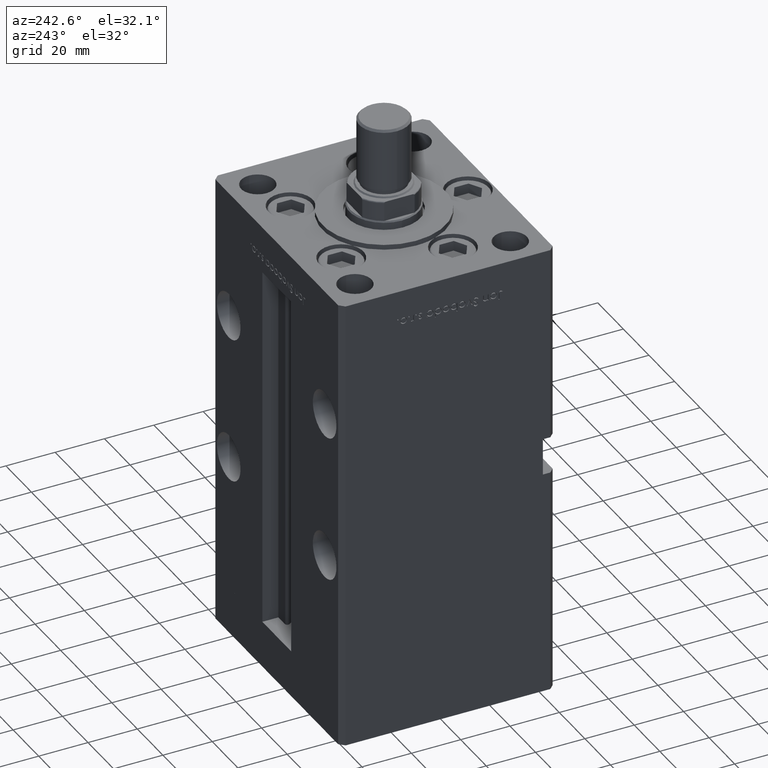
[diagram: clean part render]
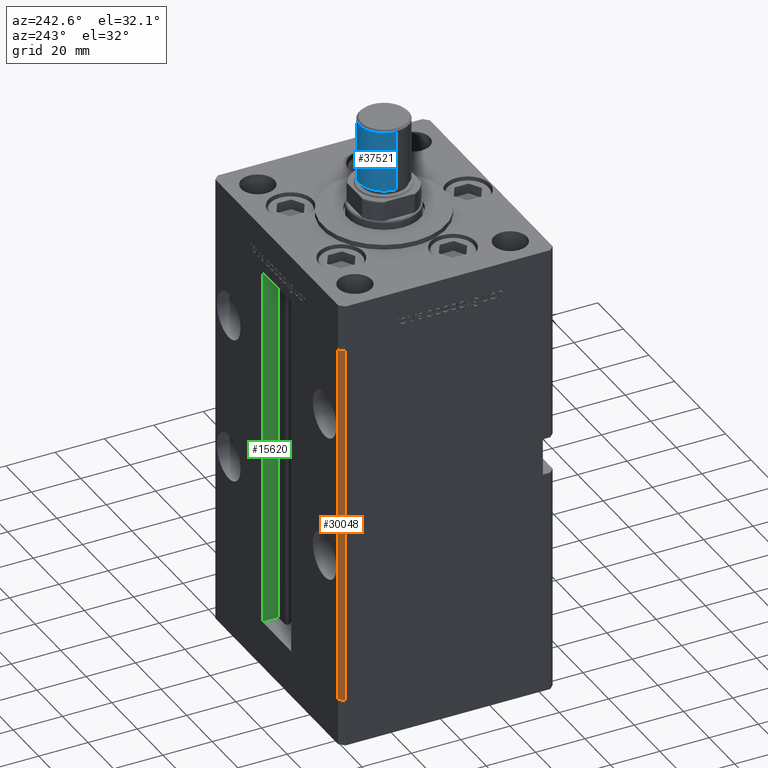
[diagram: same view with three faces highlighted in distinct colors, each labeled with its STEP entity id]
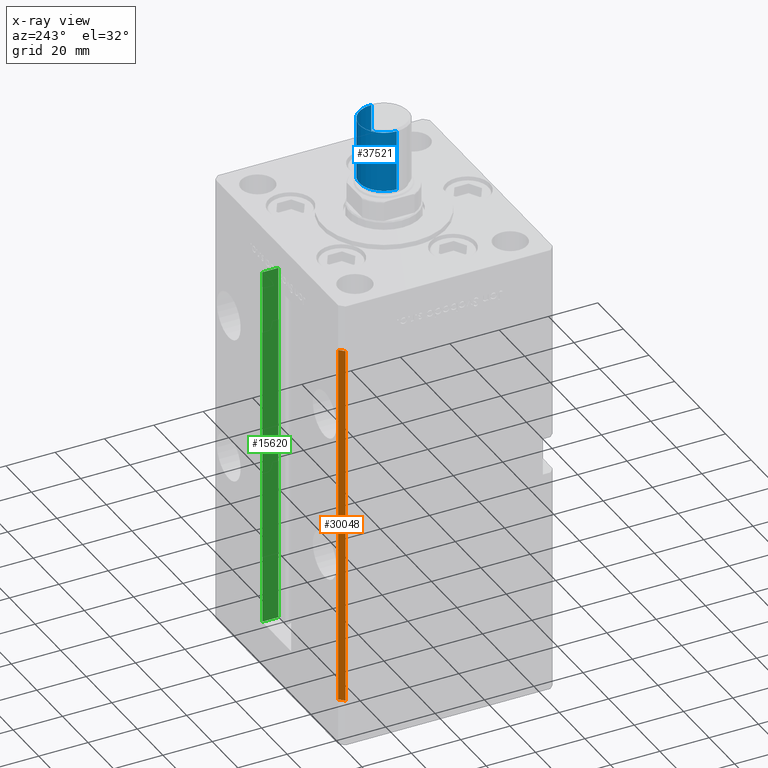
[diagram: x-ray of the same camera — body ghosted, the three highlighted faces saturated]
A machine part, auxiliary view with three faces highlighted in distinct colors.
The next image is the same camera in x-ray (body ghosted, the three faces saturated) — at least one of them is partly hidden behind the body in this view.
Their STEP definitions:

[orange] entity #30048 — the highlighted planar face has unit normal (0.7071, -0.7071, 0).
#727 = VECTOR ( 'NONE', #21235, 1000.000000000000000 ) ;
#861 = FACE_OUTER_BOUND ( 'NONE', #21091, .T. ) ;
#2205 = CARTESIAN_POINT ( 'NONE',  ( -48.00000000000000711, 43.50000000000000000, 148.5000000000000000 ) ) ;
#3016 = LINE ( 'NONE', #2205, #10998 ) ;
#3118 = CARTESIAN_POINT ( 'NONE',  ( -50.00000000000001421, 41.49999999999999289, 148.5000000000000000 ) ) ;
#4485 = ORIENTED_EDGE ( 'NONE', *, *, #14129, .T. ) ;
#5509 = LINE ( 'NONE', #33709, #727 ) ;
#5899 = ORIENTED_EDGE ( 'NONE', *, *, #44056, .T. ) ;
#7521 = DIRECTION ( 'NONE',  ( -0.000000000000000000, -0.000000000000000000, -1.000000000000000000 ) ) ;
#10955 = VERTEX_POINT ( 'NONE', #45190 ) ;
#10998 = VECTOR ( 'NONE', #15474, 1000.000000000000000 ) ;
#11321 = LINE ( 'NONE', #44890, #34502 ) ;
#12694 = ORIENTED_EDGE ( 'NONE', *, *, #19746, .F. ) ;
#13867 = DIRECTION ( 'NONE',  ( 0.7071067811865463515, -0.7071067811865487940, 0.000000000000000000 ) ) ;
#14129 = EDGE_CURVE ( 'NONE', #51334, #19006, #26386, .T. ) ;
#14184 = DIRECTION ( 'NONE',  ( -0.7071067811865487940, -0.7071067811865463515, 0.000000000000000000 ) ) ;
#15474 = DIRECTION ( 'NONE',  ( -0.7071067811865487940, -0.7071067811865463515, 0.000000000000000000 ) ) ;
#19006 = VERTEX_POINT ( 'NONE', #21327 ) ;
#19746 = EDGE_CURVE ( 'NONE', #10955, #26444, #3016, .T. ) ;
#21091 = EDGE_LOOP ( 'NONE', ( #4485, #46870, #12694, #5899 ) ) ;
#21188 = VECTOR ( 'NONE', #14184, 1000.000000000000000 ) ;
#21235 = DIRECTION ( 'NONE',  ( -0.000000000000000000, -0.000000000000000000, -1.000000000000000000 ) ) ;
#21327 = CARTESIAN_POINT ( 'NONE',  ( -50.00000000000001421, 41.49999999999999289, 0.000000000000000000 ) ) ;
#22554 = CARTESIAN_POINT ( 'NONE',  ( -48.00000000000000711, 43.50000000000000000, 0.000000000000000000 ) ) ;
#22583 = CARTESIAN_POINT ( 'NONE',  ( -48.00000000000000711, 43.50000000000000000, 0.000000000000000000 ) ) ;
#25087 = EDGE_CURVE ( 'NONE', #26444, #19006, #5509, .T. ) ;
#26386 = LINE ( 'NONE', #22583, #21188 ) ;
#26444 = VERTEX_POINT ( 'NONE', #3118 ) ;
#29859 = PLANE ( 'NONE',  #31462 ) ;
#30048 = ADVANCED_FACE ( 'NONE', ( #861 ), #29859, .F. ) ;
#31462 = AXIS2_PLACEMENT_3D ( 'NONE', #42569, #13867, #38516 ) ;
#33709 = CARTESIAN_POINT ( 'NONE',  ( -50.00000000000001421, 41.49999999999999289, 148.5000000000000000 ) ) ;
#34502 = VECTOR ( 'NONE', #7521, 1000.000000000000000 ) ;
#38516 = DIRECTION ( 'NONE',  ( 0.7071067811865487940, 0.7071067811865463515, 0.000000000000000000 ) ) ;
#42569 = CARTESIAN_POINT ( 'NONE',  ( -48.00000000000000711, 43.50000000000000000, 148.5000000000000000 ) ) ;
#44056 = EDGE_CURVE ( 'NONE', #10955, #51334, #11321, .T. ) ;
#44890 = CARTESIAN_POINT ( 'NONE',  ( -48.00000000000000711, 43.50000000000000000, 148.5000000000000000 ) ) ;
#45190 = CARTESIAN_POINT ( 'NONE',  ( -48.00000000000000711, 43.50000000000000000, 148.5000000000000000 ) ) ;
#46870 = ORIENTED_EDGE ( 'NONE', *, *, #25087, .F. ) ;
#51334 = VERTEX_POINT ( 'NONE', #22554 ) ;

[blue] entity #37521 — the highlighted cylindrical surface (edge-blend (fillet) strip) has radius 10 mm, axis along (0, -0, 1).
#2333 = CARTESIAN_POINT ( 'NONE',  ( 10.00000000000000000, 1.224646799147353256E-15, 0.7999999999999986011 ) ) ;
#2499 = CARTESIAN_POINT ( 'NONE',  ( -10.00000000000000000, 0.000000000000000000, 25.50000000000000000 ) ) ;
#2566 = CARTESIAN_POINT ( 'NONE',  ( 10.00000000000000000, 1.224646799147353256E-15, 25.50000000000000000 ) ) ;
#4056 = AXIS2_PLACEMENT_3D ( 'NONE', #34785, #22069, #14197 ) ;
#4141 = CYLINDRICAL_SURFACE ( 'NONE', #5729, 10.00000000000000000 ) ;
#4403 = DIRECTION ( 'NONE',  ( -1.000000000000000000, 0.000000000000000000, 0.000000000000000000 ) ) ;
#5729 = AXIS2_PLACEMENT_3D ( 'NONE', #20671, #41518, #4403 ) ;
#6014 = CARTESIAN_POINT ( 'NONE',  ( 10.00000000000000000, 1.224646799147353256E-15, 25.50000000000000000 ) ) ;
#6253 = ORIENTED_EDGE ( 'NONE', *, *, #51453, .F. ) ;
#6654 = CIRCLE ( 'NONE', #4056, 10.00000000000000000 ) ;
#10974 = DIRECTION ( 'NONE',  ( -0.000000000000000000, -0.000000000000000000, -1.000000000000000000 ) ) ;
#11049 = CARTESIAN_POINT ( 'NONE',  ( -10.00000000000000000, 0.000000000000000000, 25.50000000000000000 ) ) ;
#11951 = ORIENTED_EDGE ( 'NONE', *, *, #19430, .T. ) ;
#14197 = DIRECTION ( 'NONE',  ( 1.000000000000000000, 0.000000000000000000, 0.000000000000000000 ) ) ;
#19430 = EDGE_CURVE ( 'NONE', #22932, #51744, #6654, .T. ) ;
#19571 = LINE ( 'NONE', #2499, #53282 ) ;
#20671 = CARTESIAN_POINT ( 'NONE',  ( 0.000000000000000000, 0.000000000000000000, 25.50000000000000000 ) ) ;
#22069 = DIRECTION ( 'NONE',  ( -0.000000000000000000, -0.000000000000000000, 1.000000000000000000 ) ) ;
#22932 = VERTEX_POINT ( 'NONE', #2333 ) ;
#22988 = VECTOR ( 'NONE', #10974, 1000.000000000000000 ) ;
#24966 = ORIENTED_EDGE ( 'NONE', *, *, #34829, .T. ) ;
#34785 = CARTESIAN_POINT ( 'NONE',  ( 0.000000000000000000, 0.000000000000000000, 0.7999999999999986011 ) ) ;
#34829 = EDGE_CURVE ( 'NONE', #49388, #22932, #48618, .T. ) ;
#35129 = EDGE_CURVE ( 'NONE', #44117, #51744, #19571, .T. ) ;
#36283 = AXIS2_PLACEMENT_3D ( 'NONE', #40018, #47868, #48138 ) ;
#37521 = ADVANCED_FACE ( 'NONE', ( #42319 ), #4141, .T. ) ;
#40018 = CARTESIAN_POINT ( 'NONE',  ( 0.000000000000000000, 0.000000000000000000, 25.50000000000000000 ) ) ;
#40149 = DIRECTION ( 'NONE',  ( -0.000000000000000000, -0.000000000000000000, -1.000000000000000000 ) ) ;
#41518 = DIRECTION ( 'NONE',  ( -0.000000000000000000, -0.000000000000000000, -1.000000000000000000 ) ) ;
#42319 = FACE_OUTER_BOUND ( 'NONE', #53396, .T. ) ;
#44117 = VERTEX_POINT ( 'NONE', #11049 ) ;
#45027 = ORIENTED_EDGE ( 'NONE', *, *, #35129, .F. ) ;
#47280 = CARTESIAN_POINT ( 'NONE',  ( -10.00000000000000000, 0.000000000000000000, 0.7999999999999986011 ) ) ;
#47868 = DIRECTION ( 'NONE',  ( 0.000000000000000000, 0.000000000000000000, 1.000000000000000000 ) ) ;
#48138 = DIRECTION ( 'NONE',  ( 1.000000000000000000, 0.000000000000000000, 0.000000000000000000 ) ) ;
#48618 = LINE ( 'NONE', #2566, #22988 ) ;
#49388 = VERTEX_POINT ( 'NONE', #6014 ) ;
#51453 = EDGE_CURVE ( 'NONE', #49388, #44117, #52743, .T. ) ;
#51744 = VERTEX_POINT ( 'NONE', #47280 ) ;
#52743 = CIRCLE ( 'NONE', #36283, 10.00000000000000000 ) ;
#53282 = VECTOR ( 'NONE', #40149, 1000.000000000000000 ) ;
#53396 = EDGE_LOOP ( 'NONE', ( #6253, #24966, #11951, #45027 ) ) ;

[green] entity #15620 — the highlighted planar face has unit normal (1, 0, 0).
#456 = ORIENTED_EDGE ( 'NONE', *, *, #17162, .F. ) ;
#636 = CARTESIAN_POINT ( 'NONE',  ( 11.24999999999999645, 37.00000000000000000, 0.000000000000000000 ) ) ;
#2681 = PLANE ( 'NONE',  #22980 ) ;
#3637 = DIRECTION ( 'NONE',  ( -0.000000000000000000, -1.000000000000000000, 0.000000000000000000 ) ) ;
#8816 = CARTESIAN_POINT ( 'NONE',  ( 11.24999999999999645, 43.50000000000000000, 0.000000000000000000 ) ) ;
#9208 = VECTOR ( 'NONE', #9730, 1000.000000000000000 ) ;
#9730 = DIRECTION ( 'NONE',  ( -0.000000000000000000, -0.000000000000000000, 1.000000000000000000 ) ) ;
#13772 = VECTOR ( 'NONE', #52861, 1000.000000000000000 ) ;
#15296 = CARTESIAN_POINT ( 'NONE',  ( 11.24999999999999645, 0.000000000000000000, 148.5000000000000000 ) ) ;
#15620 = ADVANCED_FACE ( 'NONE', ( #35201 ), #2681, .F. ) ;
#16080 = CARTESIAN_POINT ( 'NONE',  ( 11.24999999999999645, 37.00000000000000000, 148.5000000000000000 ) ) ;
#16461 = ORIENTED_EDGE ( 'NONE', *, *, #47366, .F. ) ;
#17162 = EDGE_CURVE ( 'NONE', #21359, #20417, #40753, .T. ) ;
#17179 = DIRECTION ( 'NONE',  ( 0.000000000000000000, 1.000000000000000000, 0.000000000000000000 ) ) ;
#17871 = EDGE_CURVE ( 'NONE', #44656, #20417, #50914, .T. ) ;
#20417 = VERTEX_POINT ( 'NONE', #16080 ) ;
#21268 = VECTOR ( 'NONE', #3637, 1000.000000000000000 ) ;
#21359 = VERTEX_POINT ( 'NONE', #29579 ) ;
#21464 = VECTOR ( 'NONE', #17179, 1000.000000000000000 ) ;
#22980 = AXIS2_PLACEMENT_3D ( 'NONE', #44130, #27613, #31140 ) ;
#25543 = EDGE_CURVE ( 'NONE', #37146, #21359, #53387, .T. ) ;
#27613 = DIRECTION ( 'NONE',  ( 1.000000000000000000, -0.000000000000000000, 0.000000000000000000 ) ) ;
#29579 = CARTESIAN_POINT ( 'NONE',  ( 11.24999999999998934, 43.50000000000000000, 148.5000000000000000 ) ) ;
#30327 = ORIENTED_EDGE ( 'NONE', *, *, #25543, .F. ) ;
#31140 = DIRECTION ( 'NONE',  ( 0.000000000000000000, 0.000000000000000000, -1.000000000000000000 ) ) ;
#32830 = EDGE_LOOP ( 'NONE', ( #30327, #16461, #41527, #456 ) ) ;
#34496 = CARTESIAN_POINT ( 'NONE',  ( 11.24999999999999645, 37.00000000000000000, 0.000000000000000000 ) ) ;
#35201 = FACE_OUTER_BOUND ( 'NONE', #32830, .T. ) ;
#36049 = CARTESIAN_POINT ( 'NONE',  ( 11.24999999999999645, 43.50000000000000000, 0.000000000000000000 ) ) ;
#37146 = VERTEX_POINT ( 'NONE', #8816 ) ;
#40753 = LINE ( 'NONE', #15296, #21268 ) ;
#41527 = ORIENTED_EDGE ( 'NONE', *, *, #17871, .T. ) ;
#41820 = LINE ( 'NONE', #636, #21464 ) ;
#44130 = CARTESIAN_POINT ( 'NONE',  ( 11.24999999999999645, 37.00000000000000000, 0.000000000000000000 ) ) ;
#44656 = VERTEX_POINT ( 'NONE', #34496 ) ;
#46569 = CARTESIAN_POINT ( 'NONE',  ( 11.24999999999999645, 37.00000000000000000, 0.000000000000000000 ) ) ;
#47366 = EDGE_CURVE ( 'NONE', #44656, #37146, #41820, .T. ) ;
#50914 = LINE ( 'NONE', #46569, #9208 ) ;
#52861 = DIRECTION ( 'NONE',  ( -0.000000000000000000, -0.000000000000000000, 1.000000000000000000 ) ) ;
#53387 = LINE ( 'NONE', #36049, #13772 ) ;